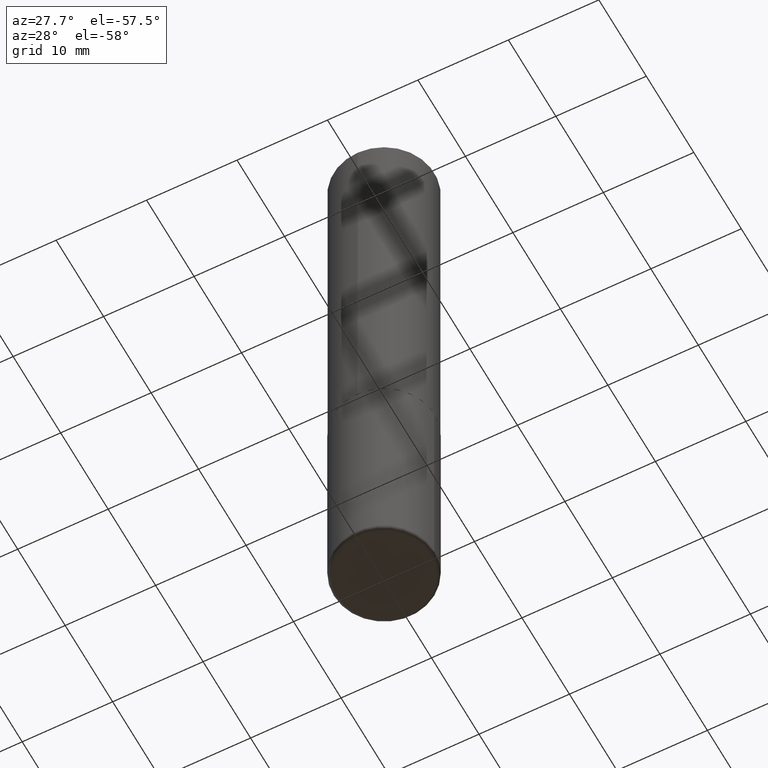
[diagram: clean part render]
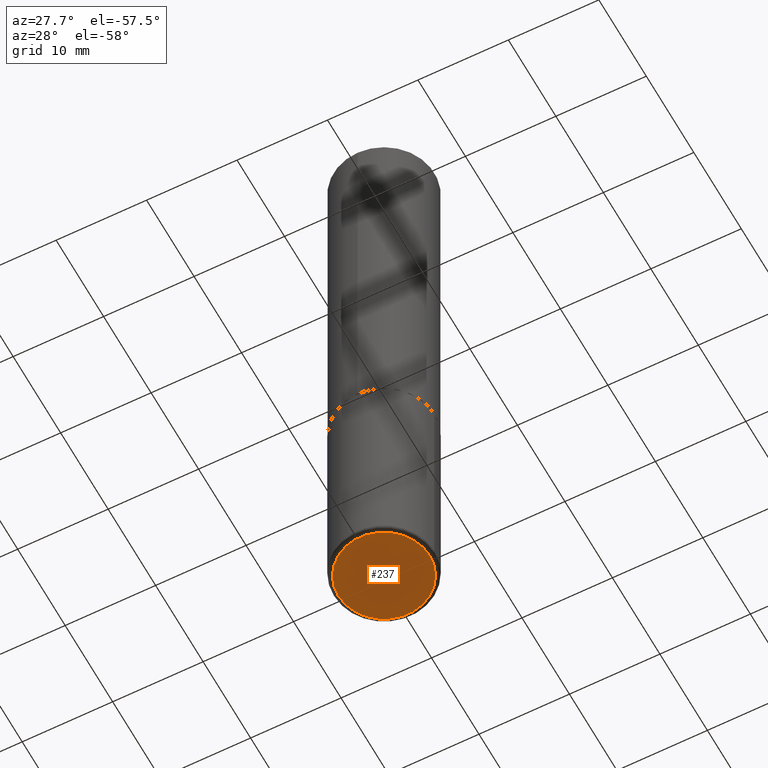
[diagram: same view with one face highlighted and labeled with its STEP entity id]
A machine part, auxiliary view. The second image highlights one B-rep face of the part: STEP entity #237.
In plain terms, the highlighted planar face has unit normal (0, -0, -1).
Its self-contained STEP definition (entity closure, byte-faithful):
#3 = EDGE_CURVE ( 'NONE', #267, #162, #219, .T. ) ;
#9 = CARTESIAN_POINT ( 'NONE',  ( 0.1987500000000000100, -1.098943751400879489E-14, -2.750000000000000000 ) ) ;
#20 = DIRECTION ( 'NONE',  ( -2.445468806185136597E-29, 3.491481338843145583E-15, 1.000000000000000000 ) ) ;
#32 = FACE_OUTER_BOUND ( 'NONE', #224, .T. ) ;
#35 = DIRECTION ( 'NONE',  ( 2.438088387897960049E-29, -3.491481338843145188E-15, -1.000000000000000000 ) ) ;
#37 = PLANE ( 'NONE',  #209 ) ;
#60 = CARTESIAN_POINT ( 'NONE',  ( 6.725039217009124520E-29, -9.601573681818649859E-15, -2.750000000000000000 ) ) ;
#89 = DIRECTION ( 'NONE',  ( -2.445468806185136597E-29, 3.491481338843145583E-15, 1.000000000000000000 ) ) ;
#93 = ORIENTED_EDGE ( 'NONE', *, *, #3, .F. ) ;
#112 = DIRECTION ( 'NONE',  ( 1.000000000000000000, -6.982962677686265133E-15, 0.000000000000000000 ) ) ;
#123 = AXIS2_PLACEMENT_3D ( 'NONE', #374, #20, #112 ) ;
#129 = DIRECTION ( 'NONE',  ( 1.000000000000000000, -6.982962677686265133E-15, 0.000000000000000000 ) ) ;
#130 = ORIENTED_EDGE ( 'NONE', *, *, #274, .F. ) ;
#131 = CARTESIAN_POINT ( 'NONE',  ( -0.1987500000000000100, -8.083400907531010713E-15, -2.750000000000000000 ) ) ;
#145 = CIRCLE ( 'NONE', #260, 0.1987500000000000100 ) ;
#162 = VERTEX_POINT ( 'NONE', #9 ) ;
#209 = AXIS2_PLACEMENT_3D ( 'NONE', #60, #35, #331 ) ;
#219 = CIRCLE ( 'NONE', #123, 0.1987500000000000100 ) ;
#224 = EDGE_LOOP ( 'NONE', ( #130, #93 ) ) ;
#237 = ADVANCED_FACE ( 'NONE', ( #32 ), #37, .T. ) ;
#260 = AXIS2_PLACEMENT_3D ( 'NONE', #301, #89, #129 ) ;
#267 = VERTEX_POINT ( 'NONE', #131 ) ;
#274 = EDGE_CURVE ( 'NONE', #162, #267, #145, .T. ) ;
#301 = CARTESIAN_POINT ( 'NONE',  ( 6.725039217009124520E-29, -9.601573681818649859E-15, -2.750000000000000000 ) ) ;
#331 = DIRECTION ( 'NONE',  ( -1.000000000000000000, 6.982962677686265922E-15, -4.876176775795935793E-29 ) ) ;
#374 = CARTESIAN_POINT ( 'NONE',  ( 6.725039217009124520E-29, -9.601573681818649859E-15, -2.750000000000000000 ) ) ;